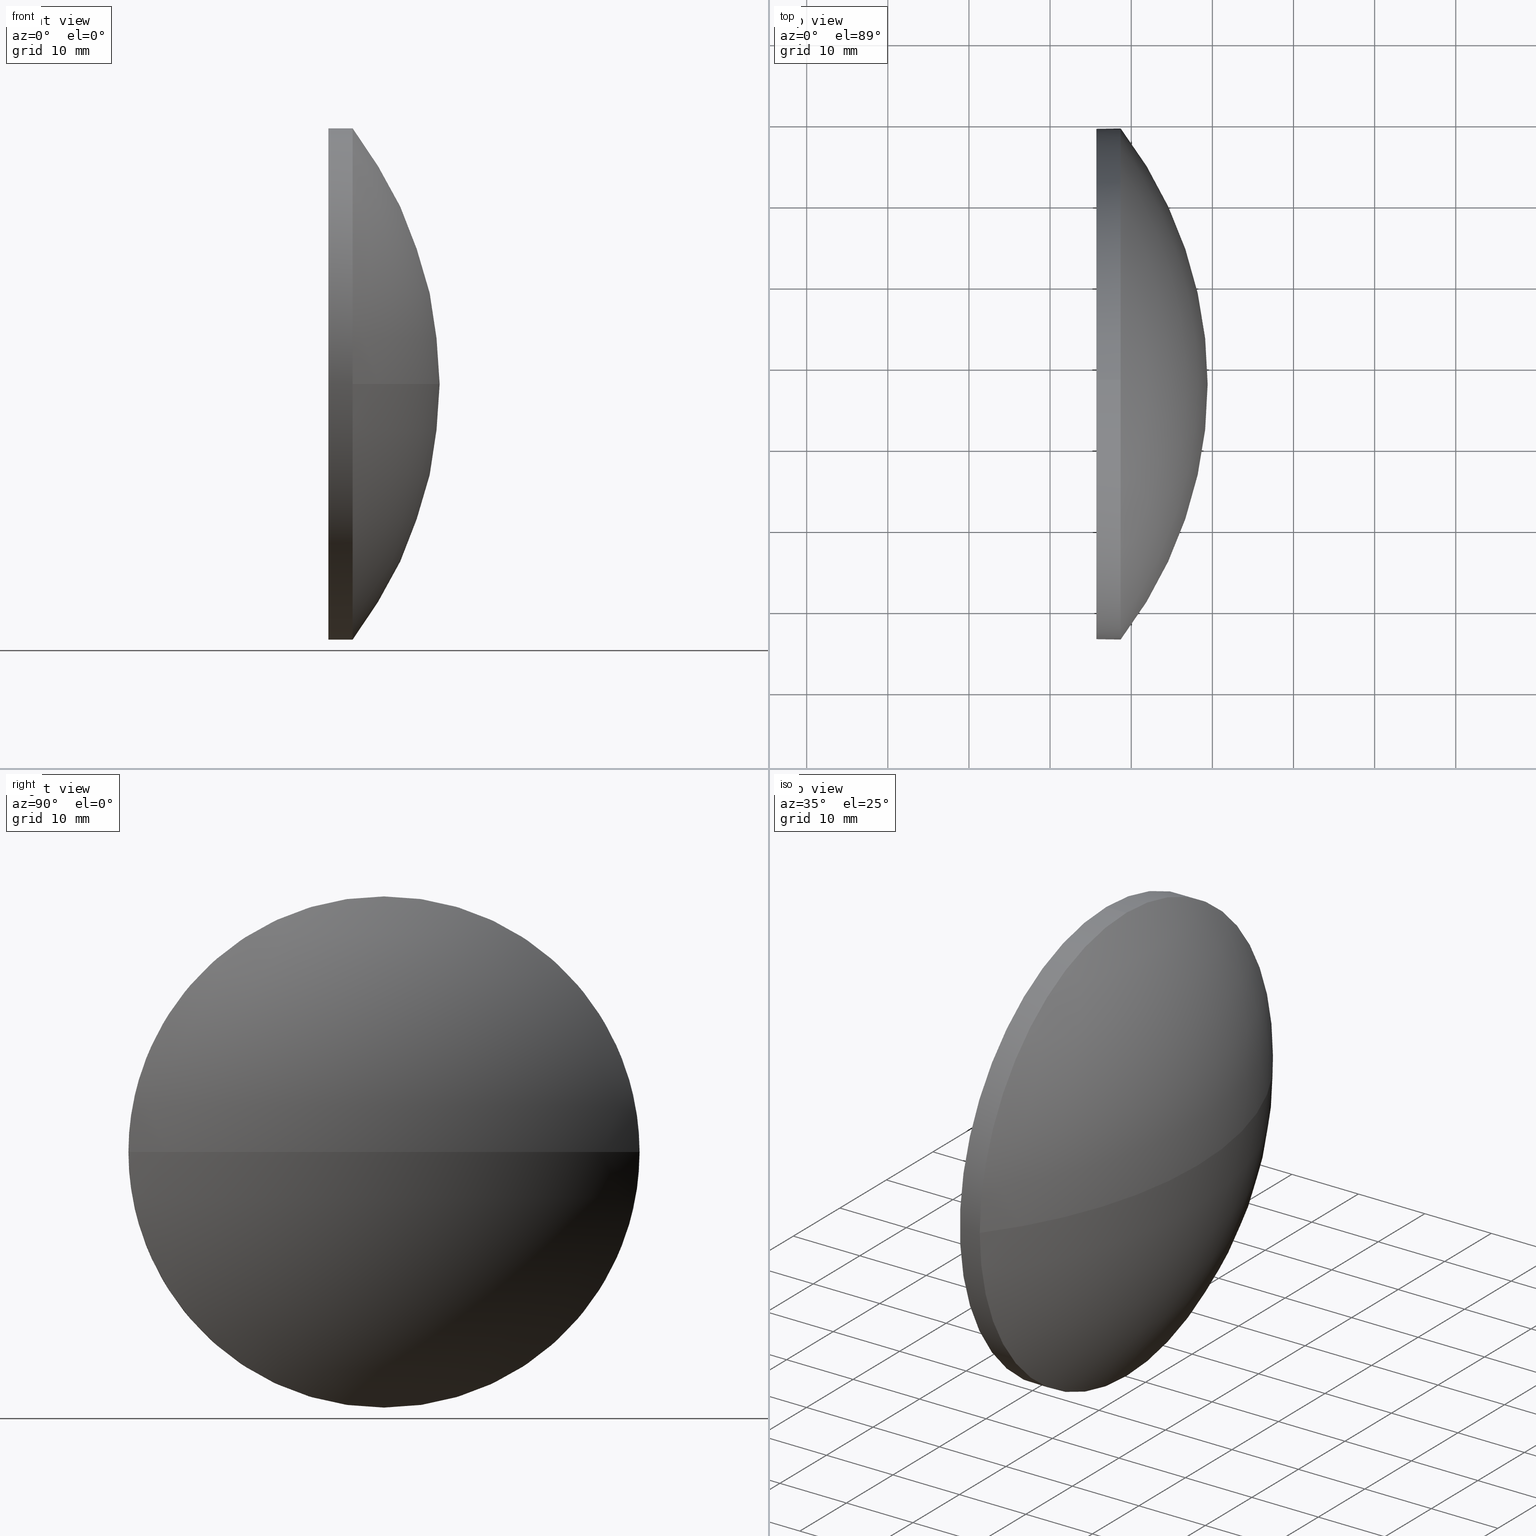
[diagram: canonical four-view strip — front | top / right | iso, engineering-drawing reading convention]
A machine part, canonical four-view strip (front | top / right | iso — engineering-drawing reading convention). The complete STEP part file that produces these views, byte-faithful:
ISO-10303-21;
HEADER;
FILE_DESCRIPTION (( 'STEP AP214' ),
    '1' );
FILE_NAME ('100072.STEP',
    '2019-05-06T03:44:59',
    ( '' ),
    ( '' ),
    'SwSTEP 2.0',
    'SolidWorks 2016',
    '' );
FILE_SCHEMA (( 'AUTOMOTIVE_DESIGN' ));
ENDSEC;

DATA;
#1 = ADVANCED_FACE ( 'NONE', ( #148 ), #74, .F. ) ;
#2 = FILL_AREA_STYLE ('',( #177 ) ) ;
#3 = AXIS2_PLACEMENT_3D ( 'NONE', #17, #139, #34 ) ;
#4 = CARTESIAN_POINT ( 'NONE',  ( 388.7011333870950700, 17.73166339868760100, 0.0000000000000000000 ) ) ;
#5 = DIRECTION ( 'NONE',  ( 0.0000000000000000000, 0.0000000000000000000, 1.000000000000000000 ) ) ;
#6 = EDGE_LOOP ( 'NONE', ( #167, #160, #132, #102 ) ) ;
#7 = EDGE_CURVE ( 'NONE', #25, #88, #71, .T. ) ;
#8 = SPHERICAL_SURFACE ( 'NONE', #52, 51.64031716417910900 ) ;
#9 = PRODUCT_DEFINITION_CONTEXT ( 'detailed design', #86, 'design' ) ;
#10 = DIRECTION ( 'NONE',  ( 1.000000000000000000, 0.0000000000000000000, 0.0000000000000000000 ) ) ;
#11 =( GEOMETRIC_REPRESENTATION_CONTEXT ( 3 ) GLOBAL_UNCERTAINTY_ASSIGNED_CONTEXT ( ( #147 ) ) GLOBAL_UNIT_ASSIGNED_CONTEXT ( ( #23, #99, #100 ) ) REPRESENTATION_CONTEXT ( 'NONE', 'WORKASPACE' ) );
#12 = ORIENTED_EDGE ( 'NONE', *, *, #94, .T. ) ;
#13 = EDGE_CURVE ( 'NONE', #126, #172, #120, .T. ) ;
#14 = CARTESIAN_POINT ( 'NONE',  ( 385.7011333870950700, 17.73166339868760100, 0.0000000000000000000 ) ) ;
#15 = ORIENTED_EDGE ( 'NONE', *, *, #32, .T. ) ;
#16 = VECTOR ( 'NONE', #113, 1000.000000000000000 ) ;
#17 = CARTESIAN_POINT ( 'NONE',  ( 347.7808162229159700, 17.73166339868760100, 0.0000000000000000000 ) ) ;
#18 = AXIS2_PLACEMENT_3D ( 'NONE', #112, #114, #10 ) ;
#19 = DIRECTION ( 'NONE',  ( -1.000000000000000000, -0.0000000000000000000, -0.0000000000000000000 ) ) ;
#20 = ORIENTED_EDGE ( 'NONE', *, *, #7, .T. ) ;
#21 = VERTEX_POINT ( 'NONE', #122 ) ;
#22 = DIRECTION ( 'NONE',  ( 0.0000000000000000000, 1.000000000000000000, 0.0000000000000000000 ) ) ;
#23 =( LENGTH_UNIT ( ) NAMED_UNIT ( * ) SI_UNIT ( .MILLI., .METRE. ) );
#24 = MANIFOLD_SOLID_BREP ( '��ת1', #130 ) ;
#25 = VERTEX_POINT ( 'NONE', #150 ) ;
#26 = LINE ( 'NONE', #97, #16 ) ;
#27 = ORIENTED_EDGE ( 'NONE', *, *, #163, .F. ) ;
#28 = FACE_OUTER_BOUND ( 'NONE', #6, .T. ) ;
#29 = PRODUCT_DEFINITION ( 'δ֪', '', #58, #9 ) ;
#30 = CARTESIAN_POINT ( 'NONE',  ( 388.7011333870950700, 17.73166339868760100, 0.0000000000000000000 ) ) ;
#31 = DIRECTION ( 'NONE',  ( -1.000000000000000000, -0.0000000000000000000, -0.0000000000000000000 ) ) ;
#32 = EDGE_CURVE ( 'NONE', #54, #126, #118, .T. ) ;
#33 = CARTESIAN_POINT ( 'NONE',  ( 385.7011333870950700, 17.73166339868760100, 31.50000000000000000 ) ) ;
#34 = DIRECTION ( 'NONE',  ( 1.000000000000000000, 0.0000000000000000000, 0.0000000000000000000 ) ) ;
#35 = VECTOR ( 'NONE', #49, 1000.000000000000000 ) ;
#36 = CARTESIAN_POINT ( 'NONE',  ( 347.7808162229159700, 17.73166339868760100, 0.0000000000000000000 ) ) ;
#37 = CARTESIAN_POINT ( 'NONE',  ( 347.7808162229159700, 17.73166339868760100, 0.0000000000000000000 ) ) ;
#38 = PRESENTATION_LAYER_ASSIGNMENT (  '', '', ( #55 ) ) ;
#39 = SURFACE_STYLE_FILL_AREA ( #2 ) ;
#40 = MECHANICAL_DESIGN_GEOMETRIC_PRESENTATION_REPRESENTATION (  '', ( #115 ), #131 ) ;
#41 = FACE_OUTER_BOUND ( 'NONE', #138, .T. ) ;
#42 = AXIS2_PLACEMENT_3D ( 'NONE', #14, #60, #134 ) ;
#43 = ORIENTED_EDGE ( 'NONE', *, *, #94, .F. ) ;
#44 = CIRCLE ( 'NONE', #72, 31.50000000000000000 ) ;
#45 = SURFACE_SIDE_STYLE ('',( #39 ) ) ;
#46 = DIRECTION ( 'NONE',  ( 0.0000000000000000000, 0.0000000000000000000, -1.000000000000000000 ) ) ;
#47 = CARTESIAN_POINT ( 'NONE',  ( 366.6621783252726300, 17.73166339868760100, 0.0000000000000000000 ) ) ;
#48 = CARTESIAN_POINT ( 'NONE',  ( 366.6621783252726300, 17.73166339868760100, 0.0000000000000000000 ) ) ;
#49 = DIRECTION ( 'NONE',  ( -1.000000000000000000, -0.0000000000000000000, -0.0000000000000000000 ) ) ;
#50 = CIRCLE ( 'NONE', #62, 31.50000000000000000 ) ;
#51 = DIRECTION ( 'NONE',  ( 0.0000000000000000000, 0.0000000000000000000, 1.000000000000000000 ) ) ;
#52 = AXIS2_PLACEMENT_3D ( 'NONE', #36, #77, #79 ) ;
#53 =( LENGTH_UNIT ( ) NAMED_UNIT ( * ) SI_UNIT ( .MILLI., .METRE. ) );
#54 = VERTEX_POINT ( 'NONE', #164 ) ;
#55 = STYLED_ITEM ( 'NONE', ( #103 ), #24 ) ;
#56 = FACE_OUTER_BOUND ( 'NONE', #110, .T. ) ;
#57 = ORIENTED_EDGE ( 'NONE', *, *, #13, .T. ) ;
#58 = PRODUCT_DEFINITION_FORMATION_WITH_SPECIFIED_SOURCE ( '�κ�', '', #174, .NOT_KNOWN. ) ;
#59 = VERTEX_POINT ( 'NONE', #107 ) ;
#60 = DIRECTION ( 'NONE',  ( -1.000000000000000000, -0.0000000000000000000, -0.0000000000000000000 ) ) ;
#61 = ADVANCED_FACE ( 'NONE', ( #28 ), #81, .T. ) ;
#62 = AXIS2_PLACEMENT_3D ( 'NONE', #64, #19, #165 ) ;
#63 = DIRECTION ( 'NONE',  ( -1.000000000000000000, -0.0000000000000000000, -0.0000000000000000000 ) ) ;
#64 = CARTESIAN_POINT ( 'NONE',  ( 385.7011333870950700, 17.73166339868760100, 0.0000000000000000000 ) ) ;
#65 = EDGE_LOOP ( 'NONE', ( #95, #96, #27, #133 ) ) ;
#66 = UNCERTAINTY_MEASURE_WITH_UNIT (LENGTH_MEASURE( 1.000000000000000100E-005 ), #53, 'distance_accuracy_value', 'NONE');
#67 = DIRECTION ( 'NONE',  ( -0.0000000000000000000, 0.0000000000000000000, -1.000000000000000000 ) ) ;
#68 = AXIS2_PLACEMENT_3D ( 'NONE', #121, #135, #46 ) ;
#69 = DIRECTION ( 'NONE',  ( -1.000000000000000000, -0.0000000000000000000, -0.0000000000000000000 ) ) ;
#70 = APPLICATION_PROTOCOL_DEFINITION ( 'draft international standard', 'automotive_design', 1998, #128 ) ;
#71 = CIRCLE ( 'NONE', #186, 31.50000000000000000 ) ;
#72 = AXIS2_PLACEMENT_3D ( 'NONE', #4, #69, #5 ) ;
#73 = ORIENTED_EDGE ( 'NONE', *, *, #157, .F. ) ;
#74 = PLANE ( 'NONE',  #68 ) ;
#75 = ADVANCED_FACE ( 'NONE', ( #185 ), #8, .T. ) ;
#76 = AXIS2_PLACEMENT_3D ( 'NONE', #183, #93, #80 ) ;
#77 = DIRECTION ( 'NONE',  ( -0.0000000000000000000, 0.0000000000000000000, -1.000000000000000000 ) ) ;
#78 = ORIENTED_EDGE ( 'NONE', *, *, #157, .T. ) ;
#79 = DIRECTION ( 'NONE',  ( 0.0000000000000000000, 1.000000000000000000, 0.0000000000000000000 ) ) ;
#80 = DIRECTION ( 'NONE',  ( 0.0000000000000000000, 0.0000000000000000000, 1.000000000000000000 ) ) ;
#81 = SPHERICAL_SURFACE ( 'NONE', #173, 51.64031716417910900 ) ;
#82 = CIRCLE ( 'NONE', #76, 31.50000000000000000 ) ;
#83 =( NAMED_UNIT ( * ) SI_UNIT ( $, .STERADIAN. ) SOLID_ANGLE_UNIT ( ) );
#84 = AXIS2_PLACEMENT_3D ( 'NONE', #37, #170, #169 ) ;
#85 = FILL_AREA_STYLE ('',( #166 ) ) ;
#86 = APPLICATION_CONTEXT ( 'automotive_design' ) ;
#87 = EDGE_CURVE ( 'NONE', #59, #54, #82, .T. ) ;
#88 = VERTEX_POINT ( 'NONE', #127 ) ;
#89 = CIRCLE ( 'NONE', #84, 51.64031716417910900 ) ;
#90 = AXIS2_PLACEMENT_3D ( 'NONE', #47, #63, #51 ) ;
#91 = PRODUCT_RELATED_PRODUCT_CATEGORY ( 'part', '', ( #174 ) ) ;
#92 = AXIS2_PLACEMENT_3D ( 'NONE', #48, #125, #181 ) ;
#93 = DIRECTION ( 'NONE',  ( -1.000000000000000000, -0.0000000000000000000, -0.0000000000000000000 ) ) ;
#94 = EDGE_CURVE ( 'NONE', #88, #172, #26, .T. ) ;
#95 = ORIENTED_EDGE ( 'NONE', *, *, #152, .F. ) ;
#96 = ORIENTED_EDGE ( 'NONE', *, *, #180, .T. ) ;
#97 = CARTESIAN_POINT ( 'NONE',  ( 366.6621783252726300, 17.73166339868760500, -31.50000000000000000 ) ) ;
#98 = SURFACE_STYLE_USAGE ( .BOTH. , #45 ) ;
#99 =( NAMED_UNIT ( * ) PLANE_ANGLE_UNIT ( ) SI_UNIT ( $, .RADIAN. ) );
#100 =( NAMED_UNIT ( * ) SI_UNIT ( $, .STERADIAN. ) SOLID_ANGLE_UNIT ( ) );
#101 =( NAMED_UNIT ( * ) PLANE_ANGLE_UNIT ( ) SI_UNIT ( $, .RADIAN. ) );
#102 = ORIENTED_EDGE ( 'NONE', *, *, #87, .F. ) ;
#103 = PRESENTATION_STYLE_ASSIGNMENT (( #98 ) ) ;
#104 = ORIENTED_EDGE ( 'NONE', *, *, #87, .T. ) ;
#105 = MECHANICAL_DESIGN_GEOMETRIC_PRESENTATION_REPRESENTATION (  '', ( #55 ), #171 ) ;
#106 = COLOUR_RGB ( '',1.000000000000000000, 1.000000000000000000, 1.000000000000000000 ) ;
#107 = CARTESIAN_POINT ( 'NONE',  ( 388.7011333870950700, -13.76833660131240200, -3.857637417314162700E-015 ) ) ;
#108 = CARTESIAN_POINT ( 'NONE',  ( 366.6621783252726300, 17.73166339868760100, 31.50000000000000000 ) ) ;
#109 = COLOUR_RGB ( '',1.000000000000000000, 1.000000000000000000, 1.000000000000000000 ) ;
#110 = EDGE_LOOP ( 'NONE', ( #43, #144, #104, #15, #73 ) ) ;
#111 = AXIS2_PLACEMENT_3D ( 'NONE', #156, #137, #153 ) ;
#112 = CARTESIAN_POINT ( 'NONE',  ( 0.0000000000000000000, 0.0000000000000000000, 0.0000000000000000000 ) ) ;
#113 = DIRECTION ( 'NONE',  ( -1.000000000000000000, -0.0000000000000000000, -0.0000000000000000000 ) ) ;
#114 = DIRECTION ( 'NONE',  ( 0.0000000000000000000, 0.0000000000000000000, 1.000000000000000000 ) ) ;
#115 = STYLED_ITEM ( 'NONE', ( #184 ), #154 ) ;
#116 = CYLINDRICAL_SURFACE ( 'NONE', #92, 31.50000000000000000 ) ;
#117 = SURFACE_SIDE_STYLE ('',( #141 ) ) ;
#118 = LINE ( 'NONE', #108, #35 ) ;
#119 = ORIENTED_EDGE ( 'NONE', *, *, #149, .T. ) ;
#120 = CIRCLE ( 'NONE', #42, 31.50000000000000000 ) ;
#121 = CARTESIAN_POINT ( 'NONE',  ( 385.7011333870950700, 17.73166339868760100, 0.0000000000000000000 ) ) ;
#122 = CARTESIAN_POINT ( 'NONE',  ( 399.4211333870950400, 17.73166339868760500, 0.0000000000000000000 ) ) ;
#123 = PRESENTATION_LAYER_ASSIGNMENT (  '', '', ( #115 ) ) ;
#124 =( NAMED_UNIT ( * ) PLANE_ANGLE_UNIT ( ) SI_UNIT ( $, .RADIAN. ) );
#125 = DIRECTION ( 'NONE',  ( -1.000000000000000000, -0.0000000000000000000, -0.0000000000000000000 ) ) ;
#126 = VERTEX_POINT ( 'NONE', #33 ) ;
#127 = CARTESIAN_POINT ( 'NONE',  ( 388.7011333870950700, 17.73166339868760500, -31.50000000000000000 ) ) ;
#128 = APPLICATION_CONTEXT ( 'automotive_design' ) ;
#129 = APPLICATION_PROTOCOL_DEFINITION ( 'draft international standard', 'automotive_design', 1998, #86 ) ;
#130 = CLOSED_SHELL ( 'NONE', ( #162, #75, #61, #151, #1 ) ) ;
#131 =( GEOMETRIC_REPRESENTATION_CONTEXT ( 3 ) GLOBAL_UNCERTAINTY_ASSIGNED_CONTEXT ( ( #66 ) ) GLOBAL_UNIT_ASSIGNED_CONTEXT ( ( #53, #101, #83 ) ) REPRESENTATION_CONTEXT ( 'NONE', 'WORKASPACE' ) );
#132 = ORIENTED_EDGE ( 'NONE', *, *, #149, .F. ) ;
#133 = ORIENTED_EDGE ( 'NONE', *, *, #7, .F. ) ;
#134 = DIRECTION ( 'NONE',  ( 0.0000000000000000000, 0.0000000000000000000, 1.000000000000000000 ) ) ;
#135 = DIRECTION ( 'NONE',  ( 1.000000000000000000, 0.0000000000000000000, 0.0000000000000000000 ) ) ;
#136 = CARTESIAN_POINT ( 'NONE',  ( 347.7808162229159700, 17.73166339868760100, 0.0000000000000000000 ) ) ;
#137 = DIRECTION ( 'NONE',  ( -1.000000000000000000, -0.0000000000000000000, -0.0000000000000000000 ) ) ;
#138 = EDGE_LOOP ( 'NONE', ( #20, #12, #158, #145, #119 ) ) ;
#139 = DIRECTION ( 'NONE',  ( -0.0000000000000000000, 0.0000000000000000000, 1.000000000000000000 ) ) ;
#140 = SURFACE_STYLE_USAGE ( .BOTH. , #117 ) ;
#141 = SURFACE_STYLE_FILL_AREA ( #85 ) ;
#142 = PRODUCT_DEFINITION_SHAPE ( 'NONE', 'NONE',  #29 ) ;
#143 = PRODUCT_CONTEXT ( 'NONE', #128, 'mechanical' ) ;
#144 = ORIENTED_EDGE ( 'NONE', *, *, #163, .T. ) ;
#145 = ORIENTED_EDGE ( 'NONE', *, *, #32, .F. ) ;
#146 = CIRCLE ( 'NONE', #3, 51.64031716417910900 ) ;
#147 = UNCERTAINTY_MEASURE_WITH_UNIT (LENGTH_MEASURE( 1.000000000000000100E-005 ), #23, 'distance_accuracy_value', 'NONE');
#148 = FACE_OUTER_BOUND ( 'NONE', #179, .T. ) ;
#149 = EDGE_CURVE ( 'NONE', #54, #25, #161, .T. ) ;
#150 = CARTESIAN_POINT ( 'NONE',  ( 388.7011333870950700, 49.23166339868760800, 0.0000000000000000000 ) ) ;
#151 = ADVANCED_FACE ( 'NONE', ( #56 ), #176, .T. ) ;
#152 = EDGE_CURVE ( 'NONE', #21, #25, #146, .T. ) ;
#153 = DIRECTION ( 'NONE',  ( 0.0000000000000000000, 0.0000000000000000000, 1.000000000000000000 ) ) ;
#154 = ADVANCED_BREP_SHAPE_REPRESENTATION ( '100072', ( #24, #18 ), #11 ) ;
#155 =( NAMED_UNIT ( * ) SI_UNIT ( $, .STERADIAN. ) SOLID_ANGLE_UNIT ( ) );
#156 = CARTESIAN_POINT ( 'NONE',  ( 388.7011333870950700, 17.73166339868760100, 0.0000000000000000000 ) ) ;
#157 = EDGE_CURVE ( 'NONE', #172, #126, #50, .T. ) ;
#158 = ORIENTED_EDGE ( 'NONE', *, *, #13, .F. ) ;
#159 = SHAPE_DEFINITION_REPRESENTATION ( #142, #154 ) ;
#160 = ORIENTED_EDGE ( 'NONE', *, *, #152, .T. ) ;
#161 = CIRCLE ( 'NONE', #111, 31.50000000000000000 ) ;
#162 = ADVANCED_FACE ( 'NONE', ( #41 ), #116, .T. ) ;
#163 = EDGE_CURVE ( 'NONE', #88, #59, #44, .T. ) ;
#164 = CARTESIAN_POINT ( 'NONE',  ( 388.7011333870950700, 17.73166339868760100, 31.50000000000000000 ) ) ;
#165 = DIRECTION ( 'NONE',  ( 0.0000000000000000000, 0.0000000000000000000, 1.000000000000000000 ) ) ;
#166 = FILL_AREA_STYLE_COLOUR ( '', #106 ) ;
#167 = ORIENTED_EDGE ( 'NONE', *, *, #180, .F. ) ;
#168 = CARTESIAN_POINT ( 'NONE',  ( 385.7011333870950700, 17.73166339868760500, -31.50000000000000000 ) ) ;
#169 = DIRECTION ( 'NONE',  ( 0.0000000000000000000, 1.000000000000000000, 1.224646799147353200E-016 ) ) ;
#170 = DIRECTION ( 'NONE',  ( 0.0000000000000000000, 1.224646799147353200E-016, -1.000000000000000000 ) ) ;
#171 =( GEOMETRIC_REPRESENTATION_CONTEXT ( 3 ) GLOBAL_UNCERTAINTY_ASSIGNED_CONTEXT ( ( #178 ) ) GLOBAL_UNIT_ASSIGNED_CONTEXT ( ( #182, #124, #155 ) ) REPRESENTATION_CONTEXT ( 'NONE', 'WORKASPACE' ) );
#172 = VERTEX_POINT ( 'NONE', #168 ) ;
#173 = AXIS2_PLACEMENT_3D ( 'NONE', #136, #67, #22 ) ;
#174 = PRODUCT ( '100072', '100072', '', ( #143 ) ) ;
#175 = DIRECTION ( 'NONE',  ( 0.0000000000000000000, 0.0000000000000000000, 1.000000000000000000 ) ) ;
#176 = CYLINDRICAL_SURFACE ( 'NONE', #90, 31.50000000000000000 ) ;
#177 = FILL_AREA_STYLE_COLOUR ( '', #109 ) ;
#178 = UNCERTAINTY_MEASURE_WITH_UNIT (LENGTH_MEASURE( 1.000000000000000100E-005 ), #182, 'distance_accuracy_value', 'NONE');
#179 = EDGE_LOOP ( 'NONE', ( #57, #78 ) ) ;
#180 = EDGE_CURVE ( 'NONE', #21, #59, #89, .T. ) ;
#181 = DIRECTION ( 'NONE',  ( 0.0000000000000000000, 0.0000000000000000000, 1.000000000000000000 ) ) ;
#182 =( LENGTH_UNIT ( ) NAMED_UNIT ( * ) SI_UNIT ( .MILLI., .METRE. ) );
#183 = CARTESIAN_POINT ( 'NONE',  ( 388.7011333870950700, 17.73166339868760100, 0.0000000000000000000 ) ) ;
#184 = PRESENTATION_STYLE_ASSIGNMENT (( #140 ) ) ;
#185 = FACE_OUTER_BOUND ( 'NONE', #65, .T. ) ;
#186 = AXIS2_PLACEMENT_3D ( 'NONE', #30, #31, #175 ) ;
ENDSEC;
END-ISO-10303-21;
